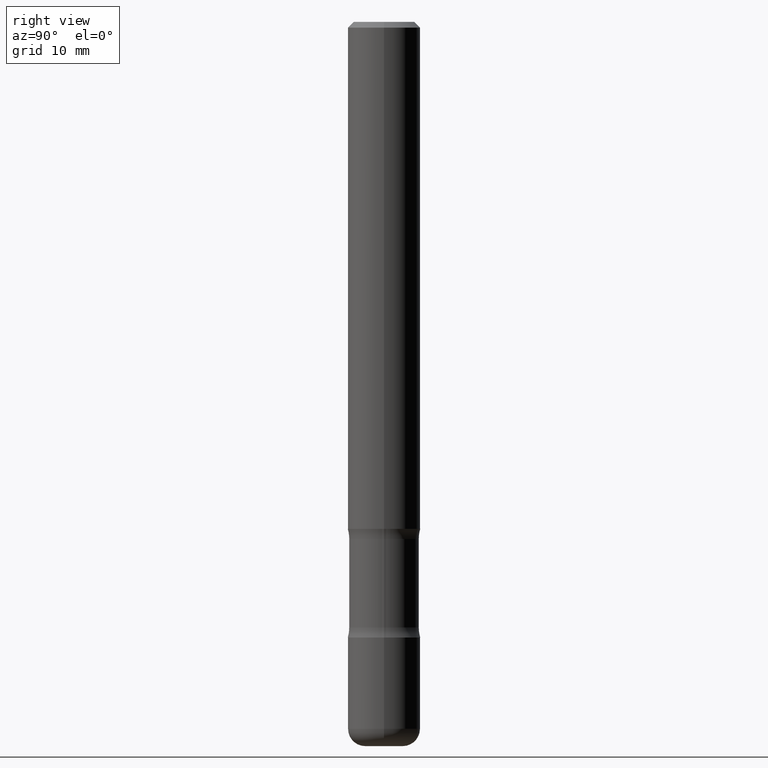
[diagram: clean part render]
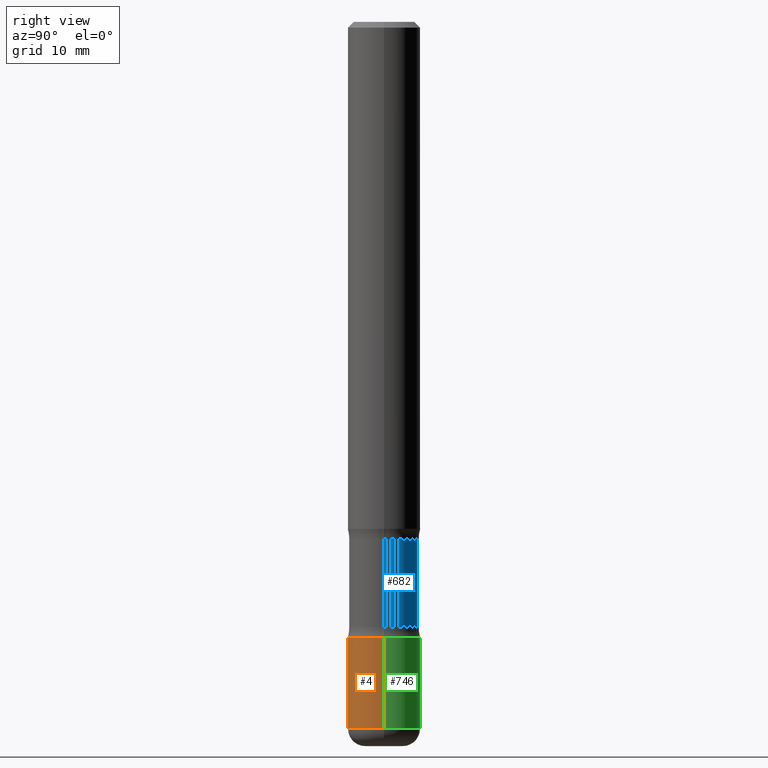
[diagram: same view with three faces highlighted in distinct colors, each labeled with its STEP entity id]
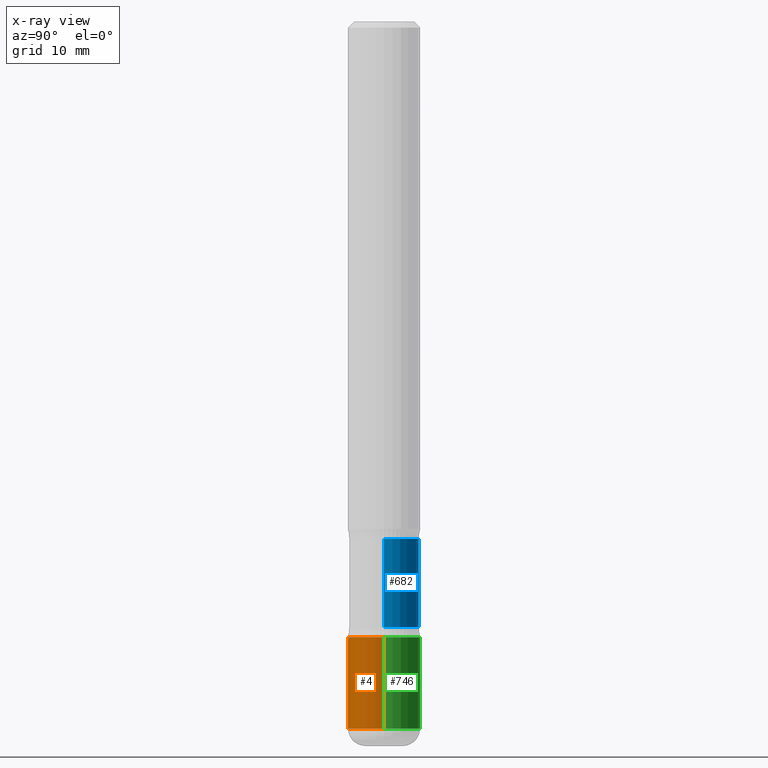
[diagram: x-ray of the same camera — body ghosted, the three highlighted faces saturated]
A machine part, right view with three faces highlighted in distinct colors.
The next image is the same camera in x-ray (body ghosted, the three faces saturated) — at least one of them is partly hidden behind the body in this view.
Their STEP definitions:

[orange] entity #4 — the highlighted cylindrical surface (edge-blend (fillet) strip) has radius 3.175 mm, axis along (-0, 0, 1).
#4 = ADVANCED_FACE ( 'NONE', ( #69 ), #698, .T. ) ;
#46 = CIRCLE ( 'NONE', #483, 0.1250000000000000278 ) ;
#69 = FACE_OUTER_BOUND ( 'NONE', #299, .T. ) ;
#131 = ORIENTED_EDGE ( 'NONE', *, *, #767, .T. ) ;
#158 = CARTESIAN_POINT ( 'NONE',  ( 5.196621213143415268E-29, -7.419397845041683624E-15, -2.125000000000000000 ) ) ;
#177 = EDGE_CURVE ( 'NONE', #806, #621, #402, .T. ) ;
#191 = LINE ( 'NONE', #437, #644 ) ;
#219 = DIRECTION ( 'NONE',  ( -2.445468806185136597E-29, 3.491481338843145583E-15, 1.000000000000000000 ) ) ;
#270 = LINE ( 'NONE', #391, #336 ) ;
#276 = DIRECTION ( 'NONE',  ( -2.445468806185136877E-29, 3.491481338843145188E-15, 1.000000000000000000 ) ) ;
#299 = EDGE_LOOP ( 'NONE', ( #330, #688, #131, #773 ) ) ;
#324 = CARTESIAN_POINT ( 'NONE',  ( -0.1250000000000000555, -7.081127736209354103E-15, -2.125000000000000000 ) ) ;
#330 = ORIENTED_EDGE ( 'NONE', *, *, #502, .F. ) ;
#336 = VECTOR ( 'NONE', #276, 39.37007874015748143 ) ;
#339 = CARTESIAN_POINT ( 'NONE',  ( 0.1249999999999998473, -9.392084801488056809E-15, -2.440000000000000391 ) ) ;
#391 = CARTESIAN_POINT ( 'NONE',  ( 0.1250000000000000278, -8.728703347107834374E-16, 6.095220969744920442E-30 ) ) ;
#394 = VERTEX_POINT ( 'NONE', #420 ) ;
#401 = DIRECTION ( 'NONE',  ( -2.445468806185136597E-29, 3.491481338843145583E-15, 1.000000000000000000 ) ) ;
#402 = CIRCLE ( 'NONE', #412, 0.1250000000000000000 ) ;
#412 = AXIS2_PLACEMENT_3D ( 'NONE', #529, #219, #537 ) ;
#420 = CARTESIAN_POINT ( 'NONE',  ( 0.1250000000000000278, -8.292268179752466962E-15, -2.125000000000000000 ) ) ;
#434 = DIRECTION ( 'NONE',  ( -2.445468806185136877E-29, 3.491481338843145188E-15, 1.000000000000000000 ) ) ;
#437 = CARTESIAN_POINT ( 'NONE',  ( -0.1250000000000000278, 8.881784197001254296E-16, -6.148668862818633629E-30 ) ) ;
#483 = AXIS2_PLACEMENT_3D ( 'NONE', #158, #401, #666 ) ;
#502 = EDGE_CURVE ( 'NONE', #806, #669, #191, .T. ) ;
#507 = CARTESIAN_POINT ( 'NONE',  ( 0.000000000000000000, 0.000000000000000000, 0.000000000000000000 ) ) ;
#527 = AXIS2_PLACEMENT_3D ( 'NONE', #507, #571, #763 ) ;
#529 = CARTESIAN_POINT ( 'NONE',  ( 5.966943887091733341E-29, -8.519214466777275048E-15, -2.440000000000000391 ) ) ;
#537 = DIRECTION ( 'NONE',  ( 1.000000000000000000, -6.982962677686262766E-15, 0.000000000000000000 ) ) ;
#571 = DIRECTION ( 'NONE',  ( -2.445468806185136597E-29, 3.491481338843145583E-15, 1.000000000000000000 ) ) ;
#621 = VERTEX_POINT ( 'NONE', #339 ) ;
#644 = VECTOR ( 'NONE', #434, 39.37007874015748143 ) ;
#666 = DIRECTION ( 'NONE',  ( 1.000000000000000000, -6.982962677686269077E-15, 0.000000000000000000 ) ) ;
#669 = VERTEX_POINT ( 'NONE', #324 ) ;
#688 = ORIENTED_EDGE ( 'NONE', *, *, #177, .T. ) ;
#698 = CYLINDRICAL_SURFACE ( 'NONE', #527, 0.1250000000000000278 ) ;
#714 = CARTESIAN_POINT ( 'NONE',  ( -0.1249999999999998473, -7.631036047077151393E-15, -2.440000000000000391 ) ) ;
#742 = EDGE_CURVE ( 'NONE', #669, #394, #46, .T. ) ;
#763 = DIRECTION ( 'NONE',  ( 1.000000000000000000, -6.982962677686265922E-15, 4.876176775795935232E-29 ) ) ;
#767 = EDGE_CURVE ( 'NONE', #621, #394, #270, .T. ) ;
#773 = ORIENTED_EDGE ( 'NONE', *, *, #742, .F. ) ;
#806 = VERTEX_POINT ( 'NONE', #714 ) ;

[blue] entity #682 — the highlighted cylindrical surface (edge-blend (fillet) strip) has radius 3.048 mm, axis along (-0, 0, 1).
#10 = CIRCLE ( 'NONE', #658, 0.1199999999999996764 ) ;
#11 = CARTESIAN_POINT ( 'NONE',  ( 0.1199999999999996764, -8.135151519504520597E-15, -2.089999999999998526 ) ) ;
#18 = CARTESIAN_POINT ( 'NONE',  ( 0.1199999999999996764, -7.070249711157368710E-15, -1.785000000000001252 ) ) ;
#22 = EDGE_CURVE ( 'NONE', #524, #59, #586, .T. ) ;
#35 = FACE_OUTER_BOUND ( 'NONE', #654, .T. ) ;
#59 = VERTEX_POINT ( 'NONE', #18 ) ;
#90 = LINE ( 'NONE', #741, #541 ) ;
#101 = DIRECTION ( 'NONE',  ( -2.445468806185136597E-29, 3.491481338843145583E-15, 1.000000000000000000 ) ) ;
#132 = CARTESIAN_POINT ( 'NONE',  ( -0.1199999999999996764, -6.487882070305806315E-15, -2.089999999999998526 ) ) ;
#145 = CARTESIAN_POINT ( 'NONE',  ( 0.1199999999999996764, -6.948047864297855572E-15, -1.750000000000000222 ) ) ;
#162 = DIRECTION ( 'NONE',  ( 1.000000000000000000, -6.982962677686261977E-15, 0.000000000000000000 ) ) ;
#163 = EDGE_CURVE ( 'NONE', #59, #578, #602, .T. ) ;
#171 = AXIS2_PLACEMENT_3D ( 'NONE', #723, #101, #162 ) ;
#268 = EDGE_CURVE ( 'NONE', #459, #578, #90, .T. ) ;
#281 = DIRECTION ( 'NONE',  ( -2.445468806185136597E-29, 3.491481338843145583E-15, 1.000000000000000000 ) ) ;
#343 = CARTESIAN_POINT ( 'NONE',  ( 5.111029804926932617E-29, -7.297195998182170485E-15, -2.089999999999998526 ) ) ;
#380 = ORIENTED_EDGE ( 'NONE', *, *, #163, .F. ) ;
#459 = VERTEX_POINT ( 'NONE', #132 ) ;
#462 = CARTESIAN_POINT ( 'NONE',  ( 4.279570410823989044E-29, -6.110092342975505460E-15, -1.750000000000000222 ) ) ;
#505 = ORIENTED_EDGE ( 'NONE', *, *, #791, .T. ) ;
#516 = DIRECTION ( 'NONE',  ( -2.445468806185136877E-29, 3.491481338843145188E-15, 1.000000000000000000 ) ) ;
#524 = VERTEX_POINT ( 'NONE', #11 ) ;
#525 = DIRECTION ( 'NONE',  ( -2.445468806185136597E-29, 3.491481338843145583E-15, 1.000000000000000000 ) ) ;
#541 = VECTOR ( 'NONE', #805, 39.37007874015748143 ) ;
#578 = VERTEX_POINT ( 'NONE', #710 ) ;
#586 = LINE ( 'NONE', #145, #759 ) ;
#593 = DIRECTION ( 'NONE',  ( 1.000000000000000000, -6.982962677686270655E-15, 0.000000000000000000 ) ) ;
#602 = CIRCLE ( 'NONE', #171, 0.1199999999999996764 ) ;
#641 = ORIENTED_EDGE ( 'NONE', *, *, #268, .T. ) ;
#652 = CYLINDRICAL_SURFACE ( 'NONE', #749, 0.1199999999999996764 ) ;
#654 = EDGE_LOOP ( 'NONE', ( #505, #641, #380, #739 ) ) ;
#658 = AXIS2_PLACEMENT_3D ( 'NONE', #343, #525, #776 ) ;
#682 = ADVANCED_FACE ( 'NONE', ( #35 ), #652, .T. ) ;
#710 = CARTESIAN_POINT ( 'NONE',  ( -0.1199999999999996902, -5.300778415099141289E-15, -1.785000000000001252 ) ) ;
#723 = CARTESIAN_POINT ( 'NONE',  ( 4.365161819040472256E-29, -6.232294189835019387E-15, -1.785000000000001252 ) ) ;
#739 = ORIENTED_EDGE ( 'NONE', *, *, #22, .F. ) ;
#741 = CARTESIAN_POINT ( 'NONE',  ( -0.1199999999999996764, -5.257441060063387635E-15, -1.750000000000000222 ) ) ;
#749 = AXIS2_PLACEMENT_3D ( 'NONE', #462, #281, #593 ) ;
#759 = VECTOR ( 'NONE', #516, 39.37007874015748143 ) ;
#776 = DIRECTION ( 'NONE',  ( 1.000000000000000000, -6.982962677686270655E-15, 0.000000000000000000 ) ) ;
#791 = EDGE_CURVE ( 'NONE', #524, #459, #10, .T. ) ;
#805 = DIRECTION ( 'NONE',  ( -2.445468806185136877E-29, 3.491481338843145188E-15, 1.000000000000000000 ) ) ;

[green] entity #746 — the highlighted cylindrical surface (edge-blend (fillet) strip) has radius 3.175 mm, axis along (-0, 0, 1).
#44 = CIRCLE ( 'NONE', #201, 0.1250000000000000278 ) ;
#108 = FACE_OUTER_BOUND ( 'NONE', #551, .T. ) ;
#139 = EDGE_CURVE ( 'NONE', #394, #669, #44, .T. ) ;
#191 = LINE ( 'NONE', #437, #644 ) ;
#201 = AXIS2_PLACEMENT_3D ( 'NONE', #278, #267, #470 ) ;
#231 = EDGE_CURVE ( 'NONE', #621, #806, #471, .T. ) ;
#240 = ORIENTED_EDGE ( 'NONE', *, *, #767, .F. ) ;
#267 = DIRECTION ( 'NONE',  ( -2.445468806185136597E-29, 3.491481338843145583E-15, 1.000000000000000000 ) ) ;
#270 = LINE ( 'NONE', #391, #336 ) ;
#276 = DIRECTION ( 'NONE',  ( -2.445468806185136877E-29, 3.491481338843145188E-15, 1.000000000000000000 ) ) ;
#278 = CARTESIAN_POINT ( 'NONE',  ( 5.196621213143415268E-29, -7.419397845041683624E-15, -2.125000000000000000 ) ) ;
#324 = CARTESIAN_POINT ( 'NONE',  ( -0.1250000000000000555, -7.081127736209354103E-15, -2.125000000000000000 ) ) ;
#327 = DIRECTION ( 'NONE',  ( 1.000000000000000000, -6.982962677686265922E-15, 4.876176775795935232E-29 ) ) ;
#336 = VECTOR ( 'NONE', #276, 39.37007874015748143 ) ;
#339 = CARTESIAN_POINT ( 'NONE',  ( 0.1249999999999998473, -9.392084801488056809E-15, -2.440000000000000391 ) ) ;
#352 = CYLINDRICAL_SURFACE ( 'NONE', #695, 0.1250000000000000278 ) ;
#391 = CARTESIAN_POINT ( 'NONE',  ( 0.1250000000000000278, -8.728703347107834374E-16, 6.095220969744920442E-30 ) ) ;
#394 = VERTEX_POINT ( 'NONE', #420 ) ;
#398 = ORIENTED_EDGE ( 'NONE', *, *, #502, .T. ) ;
#405 = CARTESIAN_POINT ( 'NONE',  ( 0.000000000000000000, 0.000000000000000000, 0.000000000000000000 ) ) ;
#406 = CARTESIAN_POINT ( 'NONE',  ( 5.966943887091733341E-29, -8.519214466777275048E-15, -2.440000000000000391 ) ) ;
#420 = CARTESIAN_POINT ( 'NONE',  ( 0.1250000000000000278, -8.292268179752466962E-15, -2.125000000000000000 ) ) ;
#434 = DIRECTION ( 'NONE',  ( -2.445468806185136877E-29, 3.491481338843145188E-15, 1.000000000000000000 ) ) ;
#437 = CARTESIAN_POINT ( 'NONE',  ( -0.1250000000000000278, 8.881784197001254296E-16, -6.148668862818633629E-30 ) ) ;
#443 = ORIENTED_EDGE ( 'NONE', *, *, #139, .F. ) ;
#455 = DIRECTION ( 'NONE',  ( 1.000000000000000000, -6.982962677686262766E-15, 0.000000000000000000 ) ) ;
#470 = DIRECTION ( 'NONE',  ( 1.000000000000000000, -6.982962677686269077E-15, 0.000000000000000000 ) ) ;
#471 = CIRCLE ( 'NONE', #796, 0.1250000000000000000 ) ;
#473 = DIRECTION ( 'NONE',  ( -2.445468806185136597E-29, 3.491481338843145583E-15, 1.000000000000000000 ) ) ;
#502 = EDGE_CURVE ( 'NONE', #806, #669, #191, .T. ) ;
#551 = EDGE_LOOP ( 'NONE', ( #750, #398, #443, #240 ) ) ;
#621 = VERTEX_POINT ( 'NONE', #339 ) ;
#644 = VECTOR ( 'NONE', #434, 39.37007874015748143 ) ;
#663 = DIRECTION ( 'NONE',  ( -2.445468806185136597E-29, 3.491481338843145583E-15, 1.000000000000000000 ) ) ;
#669 = VERTEX_POINT ( 'NONE', #324 ) ;
#695 = AXIS2_PLACEMENT_3D ( 'NONE', #405, #473, #327 ) ;
#714 = CARTESIAN_POINT ( 'NONE',  ( -0.1249999999999998473, -7.631036047077151393E-15, -2.440000000000000391 ) ) ;
#746 = ADVANCED_FACE ( 'NONE', ( #108 ), #352, .T. ) ;
#750 = ORIENTED_EDGE ( 'NONE', *, *, #231, .T. ) ;
#767 = EDGE_CURVE ( 'NONE', #621, #394, #270, .T. ) ;
#796 = AXIS2_PLACEMENT_3D ( 'NONE', #406, #663, #455 ) ;
#806 = VERTEX_POINT ( 'NONE', #714 ) ;